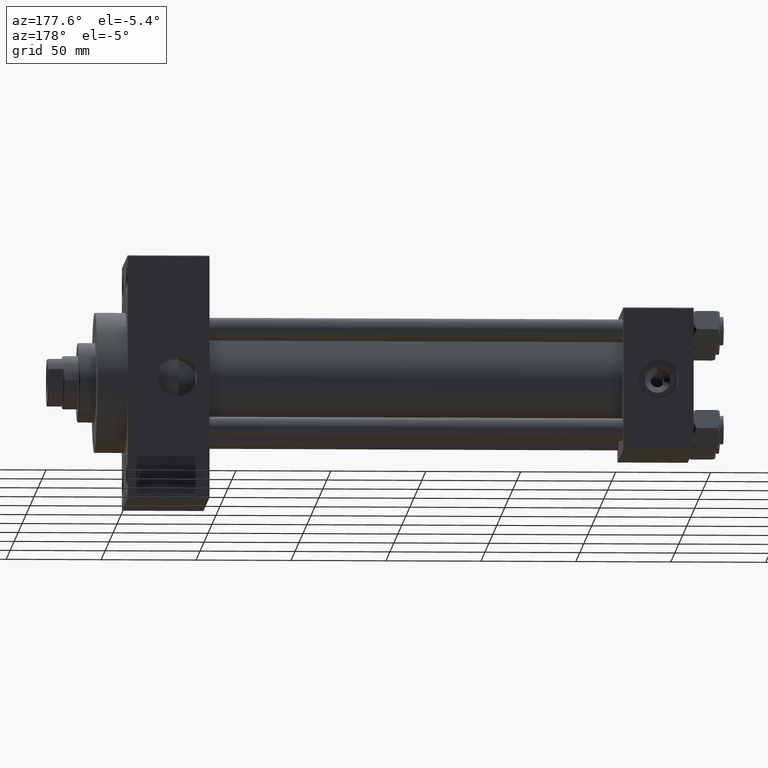
[diagram: clean part render]
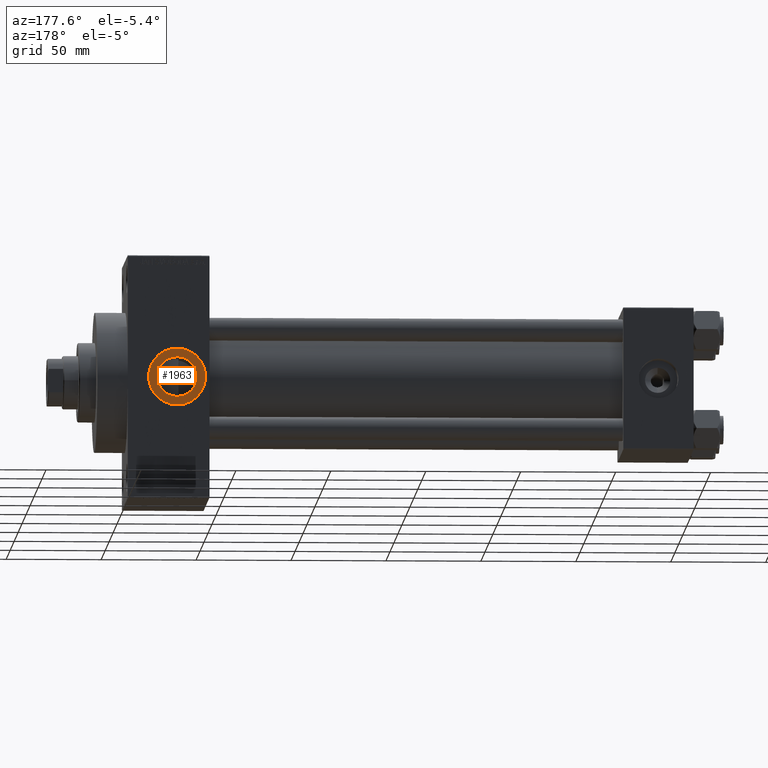
[diagram: same view with one face highlighted and labeled with its STEP entity id]
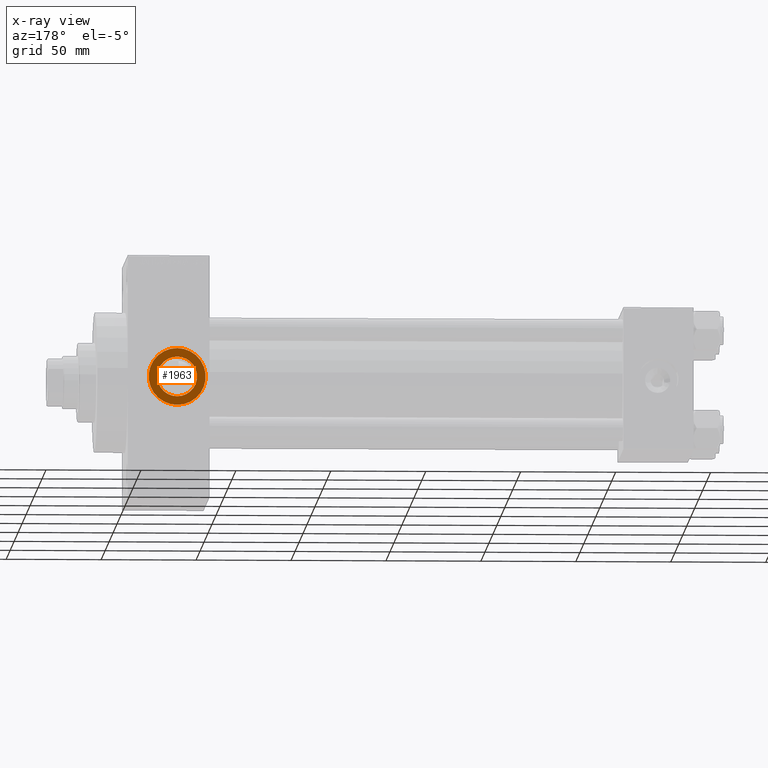
[diagram: x-ray of the same camera — body ghosted, the highlighted face saturated]
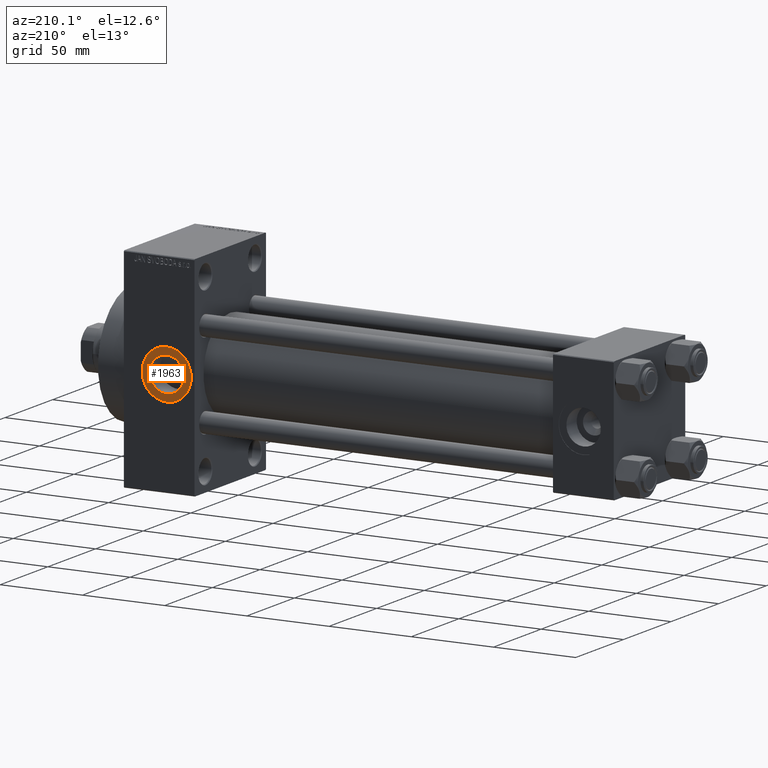
[diagram: same view with one face highlighted and labeled with its STEP entity id]
A machine part, auxiliary view. The second image highlights one B-rep face of the part: STEP entity #1963.
The next image is the same camera in x-ray: the body ghosted, the highlighted face saturated — about 0% of this face is hidden behind the body in this view.
A second angle (auxiliary view) of the same face is appended — the face is thin or edge-on in the first view.
In plain terms, the highlighted planar face has unit normal (0, 1, 0).
Its self-contained STEP definition (entity closure, byte-faithful):
#1124 = DIRECTION ( 'NONE',  ( 0.000000000000000000, 1.000000000000000000, 0.000000000000000000 ) ) ;
#1711 = EDGE_CURVE ( 'NONE', #34636, #45781, #28814, .T. ) ;
#1963 = ADVANCED_FACE ( 'NONE', ( #27810, #17082 ), #42381, .T. ) ;
#3506 = DIRECTION ( 'NONE',  ( 0.000000000000000000, 1.000000000000000000, 0.000000000000000000 ) ) ;
#8230 = AXIS2_PLACEMENT_3D ( 'NONE', #32175, #10700, #17855 ) ;
#9681 = CARTESIAN_POINT ( 'NONE',  ( 272.0000000000000000, 37.29999999999999716, -2.032879073410320814E-15 ) ) ;
#9794 = AXIS2_PLACEMENT_3D ( 'NONE', #9681, #43542, #39479 ) ;
#10700 = DIRECTION ( 'NONE',  ( 0.000000000000000000, 1.000000000000000000, 0.000000000000000000 ) ) ;
#12120 = DIRECTION ( 'NONE',  ( 0.000000000000000000, 0.000000000000000000, 1.000000000000000000 ) ) ;
#12209 = VERTEX_POINT ( 'NONE', #23810 ) ;
#13109 = AXIS2_PLACEMENT_3D ( 'NONE', #46569, #36042, #21265 ) ;
#15866 = CIRCLE ( 'NONE', #8230, 15.00000000000002487 ) ;
#15939 = CARTESIAN_POINT ( 'NONE',  ( 272.0000000000000000, 37.29999999999999716, -2.032879073410320814E-15 ) ) ;
#17082 = FACE_OUTER_BOUND ( 'NONE', #40748, .T. ) ;
#17240 = ORIENTED_EDGE ( 'NONE', *, *, #1711, .F. ) ;
#17855 = DIRECTION ( 'NONE',  ( 0.000000000000000000, 0.000000000000000000, 1.000000000000000000 ) ) ;
#18152 = EDGE_CURVE ( 'NONE', #45781, #34636, #38995, .T. ) ;
#18790 = CARTESIAN_POINT ( 'NONE',  ( 272.0000000000000000, 37.29999999999999005, -2.032879073410320814E-15 ) ) ;
#21265 = DIRECTION ( 'NONE',  ( 0.000000000000000000, 0.000000000000000000, 1.000000000000000000 ) ) ;
#23248 = EDGE_LOOP ( 'NONE', ( #17240, #44841 ) ) ;
#23810 = CARTESIAN_POINT ( 'NONE',  ( 272.0000000000000000, 37.29999999999999716, -15.00000000000002665 ) ) ;
#25760 = CARTESIAN_POINT ( 'NONE',  ( 272.0000000000000000, 37.29999999999999005, -10.47999999999998799 ) ) ;
#27808 = ORIENTED_EDGE ( 'NONE', *, *, #39351, .T. ) ;
#27810 = FACE_BOUND ( 'NONE', #23248, .T. ) ;
#28814 = CIRCLE ( 'NONE', #44860, 10.47999999999998622 ) ;
#32092 = EDGE_CURVE ( 'NONE', #42093, #12209, #32463, .T. ) ;
#32175 = CARTESIAN_POINT ( 'NONE',  ( 272.0000000000000000, 37.29999999999999716, -2.032879073410320814E-15 ) ) ;
#32463 = CIRCLE ( 'NONE', #46144, 15.00000000000002487 ) ;
#34636 = VERTEX_POINT ( 'NONE', #42072 ) ;
#36042 = DIRECTION ( 'NONE',  ( 0.000000000000000000, 1.000000000000000000, 0.000000000000000000 ) ) ;
#38995 = CIRCLE ( 'NONE', #13109, 10.47999999999998622 ) ;
#39351 = EDGE_CURVE ( 'NONE', #12209, #42093, #15866, .T. ) ;
#39479 = DIRECTION ( 'NONE',  ( 0.000000000000000000, -0.000000000000000000, 1.000000000000000000 ) ) ;
#40748 = EDGE_LOOP ( 'NONE', ( #45193, #27808 ) ) ;
#42072 = CARTESIAN_POINT ( 'NONE',  ( 272.0000000000000000, 37.29999999999999005, 10.47999999999998444 ) ) ;
#42093 = VERTEX_POINT ( 'NONE', #45316 ) ;
#42381 = PLANE ( 'NONE',  #9794 ) ;
#43542 = DIRECTION ( 'NONE',  ( 0.000000000000000000, 1.000000000000000000, 0.000000000000000000 ) ) ;
#43843 = DIRECTION ( 'NONE',  ( 0.000000000000000000, 0.000000000000000000, 1.000000000000000000 ) ) ;
#44841 = ORIENTED_EDGE ( 'NONE', *, *, #18152, .F. ) ;
#44860 = AXIS2_PLACEMENT_3D ( 'NONE', #18790, #3506, #43843 ) ;
#45193 = ORIENTED_EDGE ( 'NONE', *, *, #32092, .T. ) ;
#45316 = CARTESIAN_POINT ( 'NONE',  ( 272.0000000000000000, 37.29999999999999716, 15.00000000000002309 ) ) ;
#45781 = VERTEX_POINT ( 'NONE', #25760 ) ;
#46144 = AXIS2_PLACEMENT_3D ( 'NONE', #15939, #1124, #12120 ) ;
#46569 = CARTESIAN_POINT ( 'NONE',  ( 272.0000000000000000, 37.29999999999999005, -2.032879073410320814E-15 ) ) ;